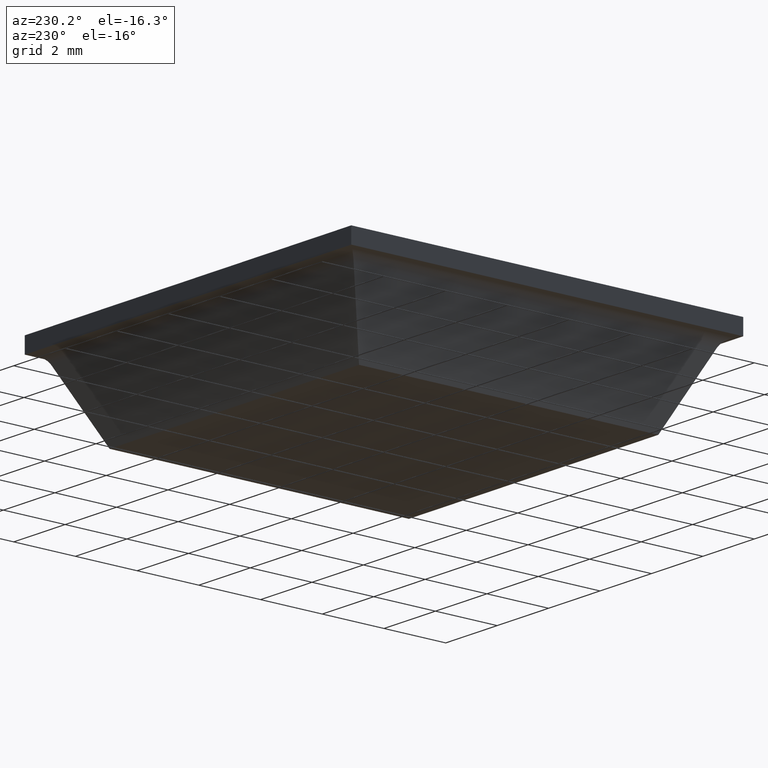
[diagram: clean part render]
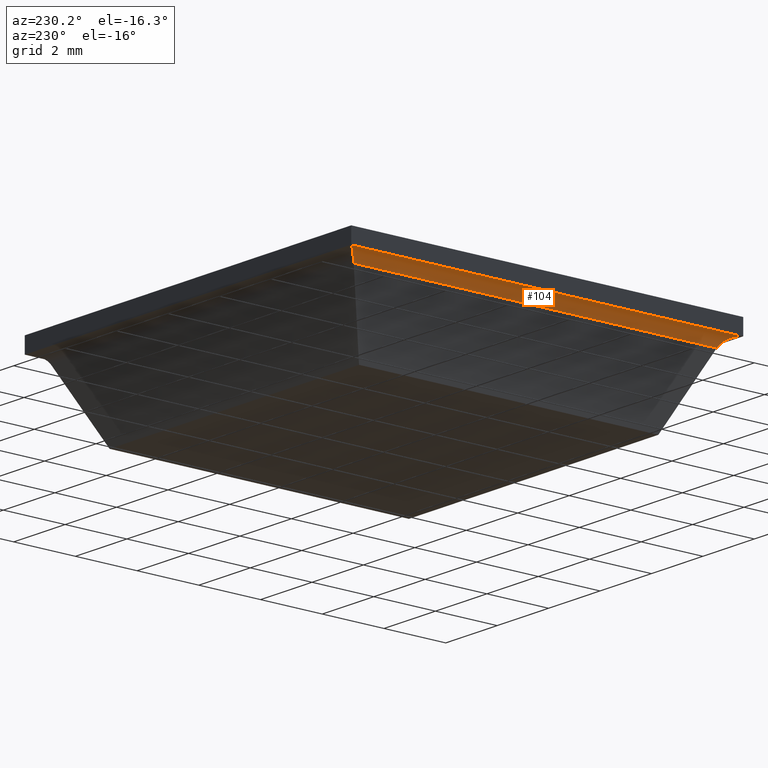
[diagram: same view with one face highlighted and labeled with its STEP entity id]
A machine part, auxiliary view. The second image highlights one B-rep face of the part: STEP entity #104.
In plain terms, the highlighted face is a freeform B-spline surface patch.
Its self-contained STEP definition (entity closure, byte-faithful):
#44=CARTESIAN_POINT('',(-6.356113588619676,6.651019152271369,2.499524113393430));
#45=CARTESIAN_POINT('',(-6.356113588619676,-6.658937032214548,2.499524113393430));
#46=CARTESIAN_POINT('',(-6.002646650900663,6.651019152271369,2.514956770922362));
#47=CARTESIAN_POINT('',(-6.002646650900663,-6.658937032214547,2.514956770922362));
#48=CARTESIAN_POINT('',(-5.870493257436940,6.651019152271369,2.186760909317002));
#49=CARTESIAN_POINT('',(-5.870493257436940,-6.658937032214548,2.186760909317002));
#57=(BOUNDED_SURFACE()B_SPLINE_SURFACE(1,2,((#44,#46,#48),(#45,#47,#49)),.UNSPECIFIED.,.F.,.F.,.U.)B_SPLINE_SURFACE_WITH_KNOTS((2,2),(3,3),(0.0,13.309956184485920),(0.0,0.978809905743040),.UNSPECIFIED.)GEOMETRIC_REPRESENTATION_ITEM()RATIONAL_B_SPLINE_SURFACE(((1.0,0.813063942265620,0.992077614633168),(1.0,0.813063942265620,0.992077614633168)))REPRESENTATION_ITEM('')SURFACE());
#58=CARTESIAN_POINT('',(-5.881150035810770,-5.881150035810910,2.211309076796455));
#59=VERTEX_POINT('',#58);
#60=CARTESIAN_POINT('',(-6.334303954544160,-6.334303954544160,2.500000000000000));
#61=VERTEX_POINT('',#60);
#62=CARTESIAN_POINT('',(-5.881150035810770,-5.881150035810910,2.211309076796455));
#63=CARTESIAN_POINT('',(-6.015768782200882,-6.015768782200882,2.500000000000001));
#64=CARTESIAN_POINT('',(-6.334303954544160,-6.334303954544160,2.500000000000000));
#72=(BOUNDED_CURVE()B_SPLINE_CURVE(2,(#62,#63,#64),.UNSPECIFIED.,.F.,.U.)CURVE()GEOMETRIC_REPRESENTATION_ITEM()QUASI_UNIFORM_CURVE()RATIONAL_B_SPLINE_CURVE((1.0,0.843391413755473,1.0))REPRESENTATION_ITEM(''));
#73=EDGE_CURVE('',#59,#61,#72,.T.);
#74=ORIENTED_EDGE('',*,*,#73,.T.);
#75=CARTESIAN_POINT('',(-6.334303954544160,6.334303954544160,2.500000000000000));
#76=VERTEX_POINT('',#75);
#77=CARTESIAN_POINT('',(-6.334303954544160,6.334303954544160,2.500000000000000));
#78=CARTESIAN_POINT('',(-6.334303954544160,-6.334303954544160,2.500000000000000));
#79=QUASI_UNIFORM_CURVE('',1,(#77,#78),.UNSPECIFIED.,.F.,.U.);
#80=EDGE_CURVE('',#76,#61,#79,.T.);
#81=ORIENTED_EDGE('',*,*,#80,.F.);
#82=CARTESIAN_POINT('',(-5.881150035810800,5.881150035810720,2.211309076796510));
#83=VERTEX_POINT('',#82);
#84=CARTESIAN_POINT('',(-6.334303954544160,6.334303954544160,2.500000000000000));
#85=CARTESIAN_POINT('',(-6.015768782200872,6.015768782200872,2.500000000000001));
#86=CARTESIAN_POINT('',(-5.881150035810800,5.881150035810720,2.211309076796510));
#94=(BOUNDED_CURVE()B_SPLINE_CURVE(2,(#84,#85,#86),.UNSPECIFIED.,.F.,.U.)CURVE()GEOMETRIC_REPRESENTATION_ITEM()QUASI_UNIFORM_CURVE()RATIONAL_B_SPLINE_CURVE((1.0,0.843391413755463,1.0))REPRESENTATION_ITEM(''));
#95=EDGE_CURVE('',#76,#83,#94,.T.);
#96=ORIENTED_EDGE('',*,*,#95,.T.);
#97=CARTESIAN_POINT('',(-5.881150035810770,-5.881150035810910,2.211309076796455));
#98=CARTESIAN_POINT('',(-5.881150035810800,5.881150035810720,2.211309076796510));
#99=QUASI_UNIFORM_CURVE('',1,(#97,#98),.UNSPECIFIED.,.F.,.U.);
#100=EDGE_CURVE('',#59,#83,#99,.T.);
#101=ORIENTED_EDGE('',*,*,#100,.F.);
#102=EDGE_LOOP('',(#74,#81,#96,#101));
#103=FACE_OUTER_BOUND('',#102,.T.);
#104=ADVANCED_FACE('',(#103),#57,.F.);